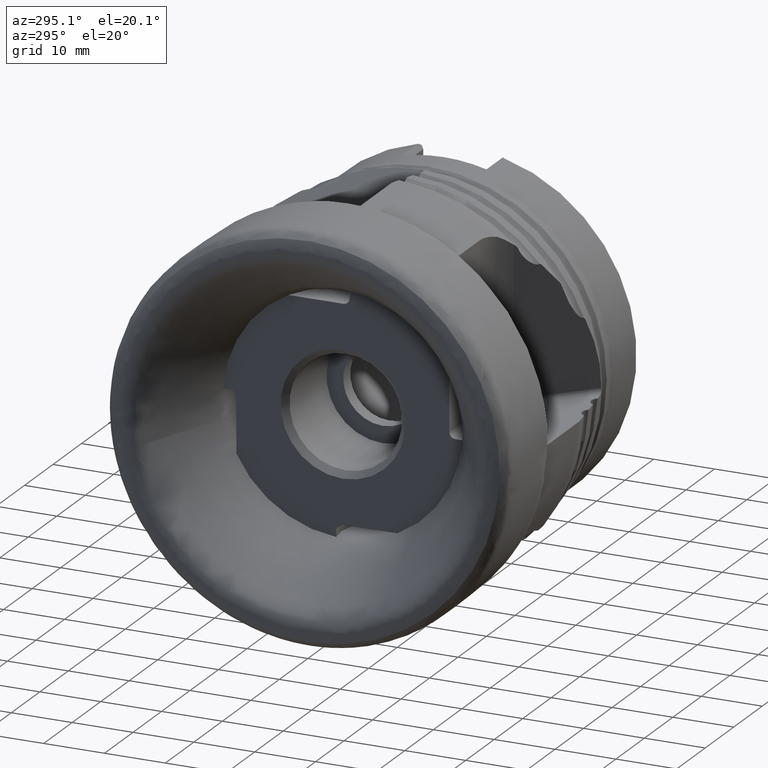
[diagram: clean part render]
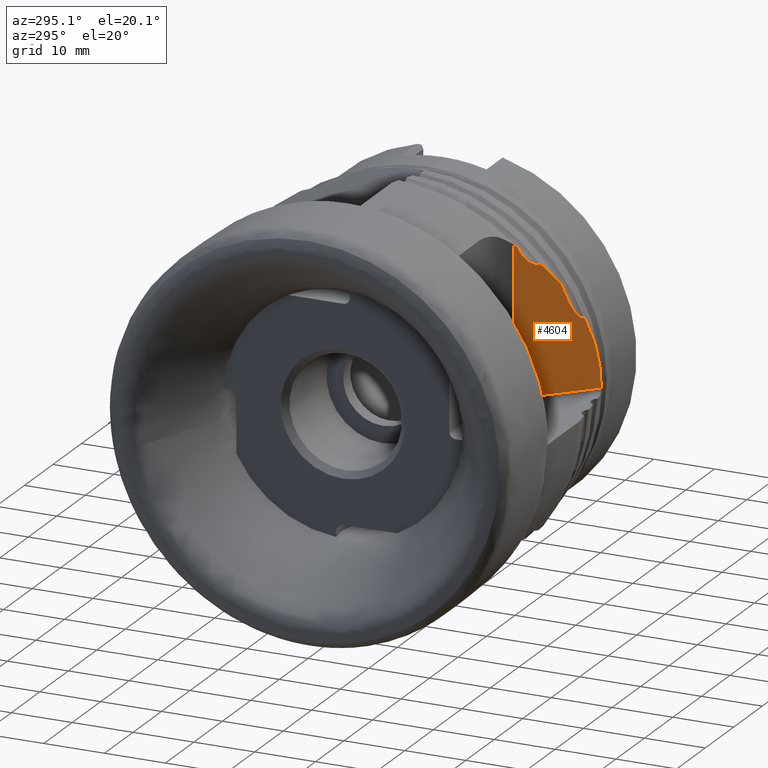
[diagram: same view with one face highlighted and labeled with its STEP entity id]
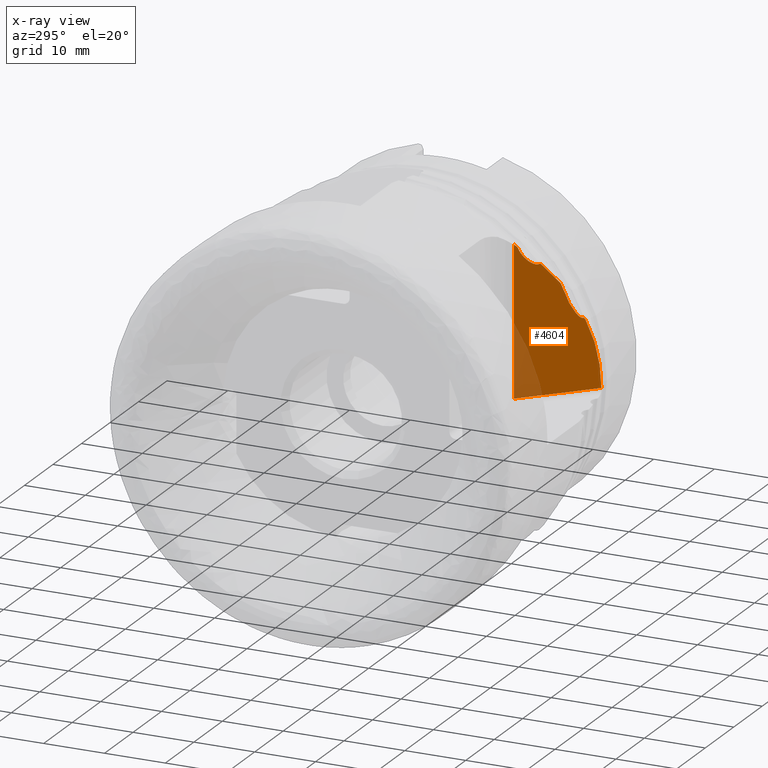
[diagram: x-ray of the same camera — body ghosted, the highlighted face saturated]
A machine part, auxiliary view. The second image highlights one B-rep face of the part: STEP entity #4604.
The next image is the same camera in x-ray: the body ghosted, the highlighted face saturated — about 14% of this face is hidden behind the body in this view.
In plain terms, the highlighted planar face has unit normal (-0.7071, -0.7071, -0).
Its self-contained STEP definition (entity closure, byte-faithful):
#2 = CARTESIAN_POINT ( 'NONE',  ( 34.56556226747040500, -25.33764020611254600, 17.30880946440795800 ) ) ;
#23 = CARTESIAN_POINT ( 'NONE',  ( 34.68108304235465100, -25.45316098099679900, 17.00311549746644600 ) ) ;
#56 = CARTESIAN_POINT ( 'NONE',  ( 29.36396103067889000, -20.13603896932103500, -0.1000000000000722500 ) ) ;
#60 = CARTESIAN_POINT ( 'NONE',  ( 39.13832055772639500, -29.91039849636843000, -0.1000000000000998100 ) ) ;
#70 = CARTESIAN_POINT ( 'NONE',  ( 34.71079385182622400, -25.48287179046836900, 16.89581879898323200 ) ) ;
#103 = CARTESIAN_POINT ( 'NONE',  ( 34.60862590166671300, -25.38070384030886500, 17.20915613206101800 ) ) ;
#171 = CARTESIAN_POINT ( 'NONE',  ( 29.43764352817805700, -20.20972146682029100, 24.23267473796162700 ) ) ;
#238 = VERTEX_POINT ( 'NONE', #56 ) ;
#246 = CARTESIAN_POINT ( 'NONE',  ( 36.91229892764986400, -27.68437686629195600, 11.42085471252253500 ) ) ;
#259 = CARTESIAN_POINT ( 'NONE',  ( 37.38478096184755400, -28.15685890048965200, 10.94033707253236400 ) ) ;
#273 = CARTESIAN_POINT ( 'NONE',  ( 34.73246751454571100, -25.50454545318785500, 16.78324883199074700 ) ) ;
#307 = CARTESIAN_POINT ( 'NONE',  ( 29.67528657185269500, -20.44736451049492500, 23.96400482308135000 ) ) ;
#479 = CARTESIAN_POINT ( 'NONE',  ( 29.78011310498116900, -20.55219104362338800, 23.75552867104693500 ) ) ;
#503 = EDGE_CURVE ( 'NONE', #1645, #3386, #1846, .T. ) ;
#515 = CARTESIAN_POINT ( 'NONE',  ( 29.36396103067889000, -20.13603896932114900, 31.93105854806573500 ) ) ;
#529 = DIRECTION ( 'NONE',  ( 0.7071067811865515700, -0.7071067811865435800, -2.512146503935847800E-015 ) ) ;
#536 = DIRECTION ( 'NONE',  ( -0.7071067811865435800, -0.7071067811865515700, -2.512146503935876600E-015 ) ) ;
#550 = CARTESIAN_POINT ( 'NONE',  ( 31.16594055501900600, -21.93801849366120700, 21.20821051209691200 ) ) ;
#556 = CARTESIAN_POINT ( 'NONE',  ( 29.36396103067889000, -20.13603896932114900, 31.93105854806573500 ) ) ;
#590 = CARTESIAN_POINT ( 'NONE',  ( 29.90699138349927100, -20.67906932214149100, 23.30576019817834400 ) ) ;
#635 = VERTEX_POINT ( 'NONE', #2982 ) ;
#717 = CARTESIAN_POINT ( 'NONE',  ( 29.58395135119254200, -20.35602928983476900, 24.07722468525977500 ) ) ;
#789 = CARTESIAN_POINT ( 'NONE',  ( 32.07703165821593700, -22.84910959685812800, 20.71138036197386600 ) ) ;
#806 = CARTESIAN_POINT ( 'NONE',  ( 36.67205481566622200, -27.44413275430832800, 11.65970323690273200 ) ) ;
#866 = EDGE_CURVE ( 'NONE', #4490, #2978, #4452, .T. ) ;
#930 = CARTESIAN_POINT ( 'NONE',  ( 37.10473438677373500, -27.87681232541583400, 11.36506396101317200 ) ) ;
#978 = CARTESIAN_POINT ( 'NONE',  ( 37.23255353520395500, -28.00463147384605700, 11.29234624811765600 ) ) ;
#1152 = EDGE_CURVE ( 'NONE', #635, #4490, #5426, .T. ) ;
#1182 = ORIENTED_EDGE ( 'NONE', *, *, #503, .T. ) ;
#1244 = CARTESIAN_POINT ( 'NONE',  ( 30.54713978676302200, -21.31921772540523500, 22.01165372389416700 ) ) ;
#1326 = ORIENTED_EDGE ( 'NONE', *, *, #866, .T. ) ;
#1329 = CARTESIAN_POINT ( 'NONE',  ( 36.34245242476837500, -27.11453036341048800, 12.16179104660814600 ) ) ;
#1391 = CARTESIAN_POINT ( 'NONE',  ( 32.38671293266462200, -23.15879087130680600, 20.68126461178432200 ) ) ;
#1459 = CARTESIAN_POINT ( 'NONE',  ( 37.35395626101546200, -28.12603419965756400, 11.03408728754955700 ) ) ;
#1494 = CARTESIAN_POINT ( 'NONE',  ( 32.21443991157980200, -22.98651785022199000, 20.76692154713873600 ) ) ;
#1526 = CARTESIAN_POINT ( 'NONE',  ( 29.36396103067889000, -20.13603896932112000, 24.30991363791839200 ) ) ;
#1535 = CARTESIAN_POINT ( 'NONE',  ( 37.38478096184755400, -28.15685890048965200, 10.94033707253236400 ) ) ;
#1557 = CARTESIAN_POINT ( 'NONE',  ( 29.58395135119254200, -20.35602928983476900, 24.07722468525977500 ) ) ;
#1645 = VERTEX_POINT ( 'NONE', #5896 ) ;
#1756 = CARTESIAN_POINT ( 'NONE',  ( 34.51372107830966500, -25.28579901695181000, 17.39963847489779900 ) ) ;
#1846 =( BOUNDED_CURVE ( )  B_SPLINE_CURVE ( 3, ( #60, #4881, #4233, #259 ),
 .UNSPECIFIED., .F., .T. ) 
 B_SPLINE_CURVE_WITH_KNOTS ( ( 4, 4 ),
 ( 3.138774970397737000, 3.454959887591666500 ),
 .UNSPECIFIED. ) 
 CURVE ( )  GEOMETRIC_REPRESENTATION_ITEM ( )  RATIONAL_B_SPLINE_CURVE ( ( 1.000000000000000000, 0.9916862620988476900, 0.9916862620988476900, 1.000000000000000000 ) ) 
 REPRESENTATION_ITEM ( '' )  );
#1859 = CARTESIAN_POINT ( 'NONE',  ( 36.00663524627822200, -26.77871318492033100, 12.83589286257981900 ) ) ;
#1967 = CARTESIAN_POINT ( 'NONE',  ( 37.25579015948158500, -28.02786809812369000, 11.25194862661626900 ) ) ;
#2011 = CARTESIAN_POINT ( 'NONE',  ( 34.73246751454571100, -25.50454545318785500, 16.78324883199074700 ) ) ;
#2139 = VERTEX_POINT ( 'NONE', #1526 ) ;
#2193 = B_SPLINE_CURVE_WITH_KNOTS ( 'NONE', 3,
 ( #1535, #1459, #5667, #1967, #978, #5395, #6149, #4688, #2494, #5619 ),
 .UNSPECIFIED., .F., .F.,
 ( 4, 2, 2, 2, 4 ),
 ( 6.704485120997367300E-007, 0.0003105794576482178300, 0.0004655339622162789500, 0.0005430112145003039500, 0.0006204884667843289500 ),
 .UNSPECIFIED. ) ;
#2315 = CARTESIAN_POINT ( 'NONE',  ( 32.30635430554497800, -23.07843224418718000, 20.74682672821789700 ) ) ;
#2367 = CARTESIAN_POINT ( 'NONE',  ( 34.51372107830966500, -25.28579901695181000, 17.39963847489779900 ) ) ;
#2414 = CARTESIAN_POINT ( 'NONE',  ( 35.70926109787025400, -26.48133903651236300, 13.53639328987175400 ) ) ;
#2442 = PLANE ( 'NONE',  #2459 ) ;
#2453 = VECTOR ( 'NONE', #529, 999.9999999999998900 ) ;
#2459 = AXIS2_PLACEMENT_3D ( 'NONE', #515, #536, #6832 ) ;
#2494 = CARTESIAN_POINT ( 'NONE',  ( 37.12129313056878700, -27.89337106921088200, 11.37679090890827800 ) ) ;
#2516 = CARTESIAN_POINT ( 'NONE',  ( 30.04710884428469700, -20.81918678292691600, 22.95964647125345700 ) ) ;
#2517 = EDGE_CURVE ( 'NONE', #2139, #238, #5557, .T. ) ;
#2577 = VERTEX_POINT ( 'NONE', #2011 ) ;
#2589 =( BOUNDED_CURVE ( )  B_SPLINE_CURVE ( 3, ( #717, #3890, #171, #3369 ),
 .UNSPECIFIED., .F., .T. ) 
 B_SPLINE_CURVE_WITH_KNOTS ( ( 4, 4 ),
 ( 3.887201193702816600, 3.896162647625051700 ),
 .UNSPECIFIED. ) 
 CURVE ( )  GEOMETRIC_REPRESENTATION_ITEM ( )  RATIONAL_B_SPLINE_CURVE ( ( 1.000000000000000000, 0.9999933077064966400, 0.9999933077064966400, 1.000000000000000000 ) ) 
 REPRESENTATION_ITEM ( '' )  );
#2597 = DIRECTION ( 'NONE',  ( 0.0000000000000000000, 3.552711656534252200E-015, -1.000000000000000000 ) ) ;
#2633 = CARTESIAN_POINT ( 'NONE',  ( 31.53119253452536700, -22.30327047316755800, 20.91705893886700100 ) ) ;
#2777 = EDGE_CURVE ( 'NONE', #2577, #4605, #2986, .T. ) ;
#2786 = VECTOR ( 'NONE', #2597, 1000.000000000000000 ) ;
#2803 = CARTESIAN_POINT ( 'NONE',  ( 29.74925724951990700, -20.52133518816212600, 23.82851529301462500 ) ) ;
#2844 =( BOUNDED_CURVE ( )  B_SPLINE_CURVE ( 3, ( #2367, #5483, #2882, #6551 ),
 .UNSPECIFIED., .F., .F. ) 
 B_SPLINE_CURVE_WITH_KNOTS ( ( 4, 4 ),
 ( 3.653987621660331500, 3.760662052071950700 ),
 .UNSPECIFIED. ) 
 CURVE ( )  GEOMETRIC_REPRESENTATION_ITEM ( )  RATIONAL_B_SPLINE_CURVE ( ( 1.000000000000000000, 0.9990519386150463800, 0.9990519386150463800, 1.000000000000000000 ) ) 
 REPRESENTATION_ITEM ( '' )  );
#2882 = CARTESIAN_POINT ( 'NONE',  ( 33.19895010219848100, -23.97102804084065400, 19.56590730918775700 ) ) ;
#2896 = EDGE_CURVE ( 'NONE', #6691, #635, #4922, .T. ) ;
#2934 = CARTESIAN_POINT ( 'NONE',  ( 35.26804154584228700, -26.04011948448442100, 14.74076850438543400 ) ) ;
#2978 = VERTEX_POINT ( 'NONE', #4193 ) ;
#2982 = CARTESIAN_POINT ( 'NONE',  ( 32.21443991157980200, -22.98651785022199000, 20.76692154713873600 ) ) ;
#2986 = B_SPLINE_CURVE_WITH_KNOTS ( 'NONE', 3,
 ( #5640, #70, #23, #103, #2, #6850 ),
 .UNSPECIFIED., .F., .F.,
 ( 4, 2, 4 ),
 ( 1.062624090331718400E-006, 0.0003461078719330269900, 0.0006911531197757222300 ),
 .UNSPECIFIED. ) ;
#3237 = ORIENTED_EDGE ( 'NONE', *, *, #2517, .T. ) ;
#3365 = CARTESIAN_POINT ( 'NONE',  ( 30.36764337065010400, -21.13972130929231600, 22.31137679372055200 ) ) ;
#3366 = ORIENTED_EDGE ( 'NONE', *, *, #1152, .T. ) ;
#3369 = CARTESIAN_POINT ( 'NONE',  ( 29.36396103067889000, -20.13603896932112000, 24.30991363791839200 ) ) ;
#3386 = VERTEX_POINT ( 'NONE', #5472 ) ;
#3387 = ORIENTED_EDGE ( 'NONE', *, *, #3614, .T. ) ;
#3434 = EDGE_CURVE ( 'NONE', #238, #1645, #3851, .T. ) ;
#3462 = CARTESIAN_POINT ( 'NONE',  ( 34.83488706843805000, -25.60696500708018800, 16.25129602129510800 ) ) ;
#3584 = CARTESIAN_POINT ( 'NONE',  ( 29.80269778743209800, -20.57477572607432100, 23.67546864615679100 ) ) ;
#3614 = EDGE_CURVE ( 'NONE', #3386, #4841, #2193, .T. ) ;
#3827 = CARTESIAN_POINT ( 'NONE',  ( 29.63253298840090700, -20.40461092704313000, 24.02537486412413900 ) ) ;
#3851 = LINE ( 'NONE', #5763, #2453 ) ;
#3890 = CARTESIAN_POINT ( 'NONE',  ( 29.51097412576581600, -20.28305206440804300, 24.15511123466436400 ) ) ;
#3969 = CARTESIAN_POINT ( 'NONE',  ( 36.74704226040839900, -27.51912019905049400, 11.56820026010690800 ) ) ;
#4131 = ORIENTED_EDGE ( 'NONE', *, *, #6588, .T. ) ;
#4193 = CARTESIAN_POINT ( 'NONE',  ( 29.58395135119254200, -20.35602928983476900, 24.07722468525977500 ) ) ;
#4233 = CARTESIAN_POINT ( 'NONE',  ( 38.55964596771878000, -29.33172390636084600, 7.367103790703588100 ) ) ;
#4262 = EDGE_CURVE ( 'NONE', #2978, #2139, #2589, .T. ) ;
#4275 = ORIENTED_EDGE ( 'NONE', *, *, #2777, .T. ) ;
#4425 = ORIENTED_EDGE ( 'NONE', *, *, #3434, .T. ) ;
#4434 = CARTESIAN_POINT ( 'NONE',  ( 32.21443991157980200, -22.98651785022199000, 20.76692154713873600 ) ) ;
#4452 = B_SPLINE_CURVE_WITH_KNOTS ( 'NONE', 3,
 ( #3584, #479, #2803, #307, #3827, #1557 ),
 .UNSPECIFIED., .F., .F.,
 ( 4, 2, 4 ),
 ( 7.539114331767722400E-007, 0.0002558603429007041500, 0.0005109667743682316100 ),
 .UNSPECIFIED. ) ;
#4487 = CARTESIAN_POINT ( 'NONE',  ( 37.10473438677373500, -27.87681232541583400, 11.36506396101317200 ) ) ;
#4490 = VERTEX_POINT ( 'NONE', #5757 ) ;
#4509 = CARTESIAN_POINT ( 'NONE',  ( 36.46362224868337200, -27.23570018732549900, 11.94734197563389900 ) ) ;
#4592 = CARTESIAN_POINT ( 'NONE',  ( 32.45556907067288700, -23.22764700931506700, 20.59416338923296100 ) ) ;
#4604 = ADVANCED_FACE ( 'NONE', ( #5907 ), #2442, .T. ) ;
#4605 = VERTEX_POINT ( 'NONE', #1756 ) ;
#4688 = CARTESIAN_POINT ( 'NONE',  ( 37.14105463098616900, -27.91313256962826700, 11.37517151452465000 ) ) ;
#4841 = VERTEX_POINT ( 'NONE', #930 ) ;
#4860 = ORIENTED_EDGE ( 'NONE', *, *, #2896, .T. ) ;
#4881 = CARTESIAN_POINT ( 'NONE',  ( 39.14905939509569100, -29.92113733373773200, 3.656139448289417200 ) ) ;
#4922 = B_SPLINE_CURVE_WITH_KNOTS ( 'NONE', 3,
 ( #5714, #5526, #1391, #2315, #5185, #1494 ),
 .UNSPECIFIED., .F., .F.,
 ( 4, 2, 4 ),
 ( 3.924950118836852400E-007, 0.0001956916119994743000, 0.0003909907289870649100 ),
 .UNSPECIFIED. ) ;
#4986 = CARTESIAN_POINT ( 'NONE',  ( 37.00501423665075200, -27.77709217529284300, 11.36107305974315000 ) ) ;
#5007 = CARTESIAN_POINT ( 'NONE',  ( 36.11276955623036100, -26.88484749487246700, 12.60683637111103300 ) ) ;
#5179 = CARTESIAN_POINT ( 'NONE',  ( 30.94539887427353300, -21.71747681291574100, 21.46205682901201300 ) ) ;
#5185 = CARTESIAN_POINT ( 'NONE',  ( 32.26120884641428400, -23.03328678505646800, 20.77276570117978200 ) ) ;
#5282 = EDGE_LOOP ( 'NONE', ( #3237, #4425, #1182, #3387, #4131, #4275, #6344, #4860, #3366, #1326, #6431 ) ) ;
#5395 = CARTESIAN_POINT ( 'NONE',  ( 37.19061249293221000, -27.96269043157428100, 11.34216574741249100 ) ) ;
#5426 = B_SPLINE_CURVE_WITH_KNOTS ( 'NONE', 3,
 ( #4434, #789, #6025, #6351, #2633, #550, #5179, #1244, #3365, #2516, #590, #6097 ),
 .UNSPECIFIED., .F., .F.,
 ( 4, 2, 2, 2, 2, 4 ),
 ( 2.888910863402644200E-007, 0.0005957187459954598100, 0.001191148600904579500, 0.002382008310722794400, 0.003572868020541008900, 0.004763727730359224200 ),
 .UNSPECIFIED. ) ;
#5472 = CARTESIAN_POINT ( 'NONE',  ( 37.38478096184755400, -28.15685890048965200, 10.94033707253236400 ) ) ;
#5483 = CARTESIAN_POINT ( 'NONE',  ( 33.88565180677984000, -24.65772974542199900, 18.50005517782823400 ) ) ;
#5526 = CARTESIAN_POINT ( 'NONE',  ( 32.42239134065853500, -23.19446927930072600, 20.64005533584254000 ) ) ;
#5535 = CARTESIAN_POINT ( 'NONE',  ( 35.80483613222594400, -26.57691407086806700, 13.30048720890256100 ) ) ;
#5557 = LINE ( 'NONE', #556, #2786 ) ;
#5619 = CARTESIAN_POINT ( 'NONE',  ( 37.10473438677373500, -27.87681232541583400, 11.36506396101317200 ) ) ;
#5640 = CARTESIAN_POINT ( 'NONE',  ( 34.73246751454571100, -25.50454545318785500, 16.78324883199074700 ) ) ;
#5667 = CARTESIAN_POINT ( 'NONE',  ( 37.31967451725496000, -28.09175245589705800, 11.12577094553786900 ) ) ;
#5714 = CARTESIAN_POINT ( 'NONE',  ( 32.45556907067288700, -23.22764700931506700, 20.59416338923296100 ) ) ;
#5757 = CARTESIAN_POINT ( 'NONE',  ( 29.80269778743209800, -20.57477572607432100, 23.67546864615679100 ) ) ;
#5763 = CARTESIAN_POINT ( 'NONE',  ( 29.36396103067889000, -20.13603896932103500, -0.1000000000000722500 ) ) ;
#5764 = B_SPLINE_CURVE_WITH_KNOTS ( 'NONE', 3,
 ( #4487, #4986, #246, #3969, #806, #4509, #1329, #5007, #1859, #5535, #2414, #6070, #2934, #6597, #3462, #273 ),
 .UNSPECIFIED., .F., .F.,
 ( 4, 2, 2, 2, 2, 2, 2, 4 ),
 ( 2.763542846701325900E-007, 0.0004136732124138865400, 0.0008270700705431030000, 0.001653863786801530200, 0.002480657503059957700, 0.003307451219318384900, 0.004961038651835240400, 0.006614626084352096700 ),
 .UNSPECIFIED. ) ;
#5896 = CARTESIAN_POINT ( 'NONE',  ( 39.13832055772639500, -29.91039849636843000, -0.1000000000000998100 ) ) ;
#5907 = FACE_OUTER_BOUND ( 'NONE', #5282, .T. ) ;
#6025 = CARTESIAN_POINT ( 'NONE',  ( 31.93230402791032300, -22.70438196655250700, 20.73140145095320000 ) ) ;
#6070 = CARTESIAN_POINT ( 'NONE',  ( 35.43491405067052100, -26.20699198931264500, 14.25250125430564700 ) ) ;
#6087 = EDGE_CURVE ( 'NONE', #4605, #6691, #2844, .T. ) ;
#6097 = CARTESIAN_POINT ( 'NONE',  ( 29.80269778743209800, -20.57477572607432100, 23.67546864615679100 ) ) ;
#6149 = CARTESIAN_POINT ( 'NONE',  ( 37.17529840067653900, -27.94737633931861600, 11.35712279762012000 ) ) ;
#6344 = ORIENTED_EDGE ( 'NONE', *, *, #6087, .T. ) ;
#6351 = CARTESIAN_POINT ( 'NONE',  ( 31.66121011223242100, -22.43328805087461600, 20.83344470708258500 ) ) ;
#6431 = ORIENTED_EDGE ( 'NONE', *, *, #4262, .T. ) ;
#6551 = CARTESIAN_POINT ( 'NONE',  ( 32.45556907067288700, -23.22764700931506700, 20.59416338923296100 ) ) ;
#6588 = EDGE_CURVE ( 'NONE', #4841, #2577, #5764, .T. ) ;
#6597 = CARTESIAN_POINT ( 'NONE',  ( 34.96841377634717000, -25.74049171498931400, 15.74042732610783300 ) ) ;
#6691 = VERTEX_POINT ( 'NONE', #4592 ) ;
#6832 = DIRECTION ( 'NONE',  ( 0.7071067811865515700, -0.7071067811865435800, 0.0000000000000000000 ) ) ;
#6850 = CARTESIAN_POINT ( 'NONE',  ( 34.51372107830966500, -25.28579901695181000, 17.39963847489779900 ) ) ;